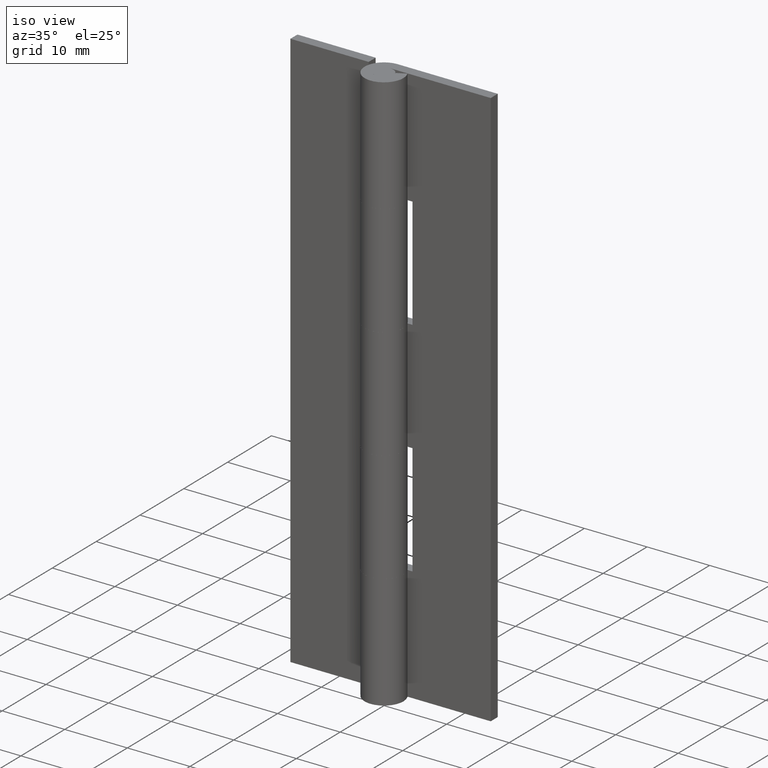
[diagram: clean part render]
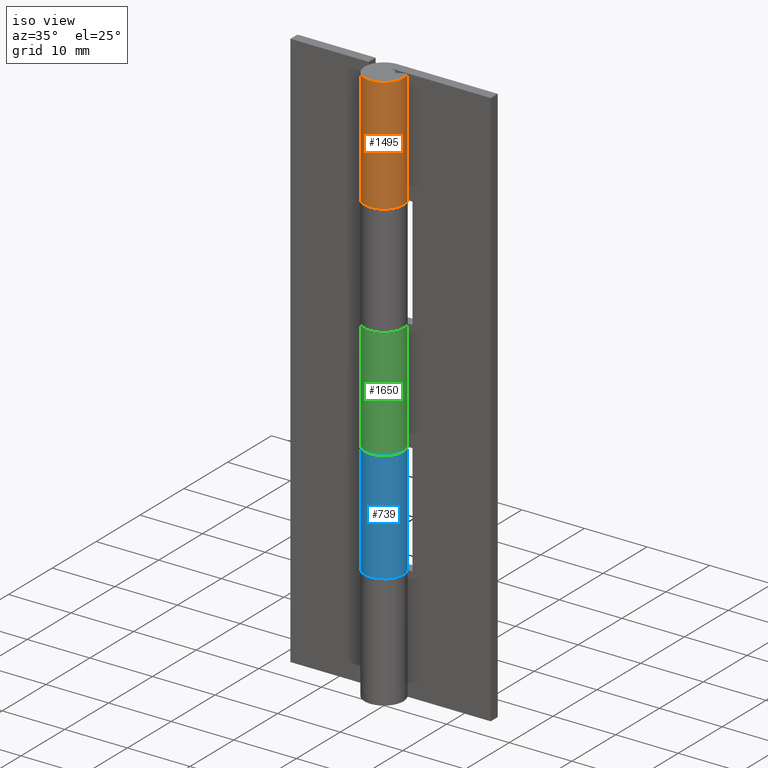
[diagram: same view with three faces highlighted in distinct colors, each labeled with its STEP entity id]
A machine part, iso view with three faces highlighted in distinct colors.
Their STEP definitions:

[orange] entity #1495 — the highlighted face is a freeform B-spline surface patch.
#1073=CARTESIAN_POINT('',(0.0,3.099998000000000,71.699996999999996));
#1074=VERTEX_POINT('',#1073);
#1075=CARTESIAN_POINT('',(0.003521362805220,3.099998000000000,71.699996999999996));
#1076=VERTEX_POINT('',#1075);
#1077=CARTESIAN_POINT('',(0.0,3.099998000000000,71.699996999999996));
#1078=CARTESIAN_POINT('',(0.003521362805220,3.099998000000000,71.699996999999996));
#1079=QUASI_UNIFORM_CURVE('',1,(#1077,#1078),.UNSPECIFIED.,.F.,.U.);
#1080=EDGE_CURVE('',#1074,#1076,#1079,.T.);
#1124=CARTESIAN_POINT('',(2.739981751764050,1.450000000000000,71.699996999999996));
#1125=VERTEX_POINT('',#1124);
#1131=CARTESIAN_POINT('',(0.0,3.099998000000000,71.699996999999996));
#1132=CARTESIAN_POINT('',(-2.356097610603766,3.099996737895512,71.699996999999996));
#1133=CARTESIAN_POINT('',(-2.986848545660751,0.829898189834370,71.699996999999996));
#1134=CARTESIAN_POINT('',(-3.617599480717734,-1.440200358226772,71.699996999999996));
#1135=CARTESIAN_POINT('',(-1.599218559171948,-2.655655344977900,71.699996999999996));
#1136=CARTESIAN_POINT('',(0.419162362373838,-3.871110331729029,71.699996999999996));
#1137=CARTESIAN_POINT('',(2.130594885355308,-2.251790737784724,71.699996999999996));
#1138=CARTESIAN_POINT('',(3.842027408336780,-0.632471143840418,71.699996999999996));
#1139=CARTESIAN_POINT('',(2.739981751764050,1.450000000000000,71.699996999999996));
#1147=(BOUNDED_CURVE()B_SPLINE_CURVE(2,(#1131,#1132,#1133,#1134,#1135,#1136,#1137,#1138,#1139),.UNSPECIFIED.,.F.,.U.)B_SPLINE_CURVE_WITH_KNOTS((3,2,2,2,3),(0.0,0.250000000000000,0.500000000000000,0.750000000000000,1.0),.UNSPECIFIED.)CURVE()GEOMETRIC_REPRESENTATION_ITEM()RATIONAL_B_SPLINE_CURVE((1.0,0.796150117301085,1.0,0.796150117301085,1.0,0.796150117301085,1.0,0.796150117301085,1.0))REPRESENTATION_ITEM(''));
#1148=EDGE_CURVE('',#1074,#1125,#1147,.T.);
#1178=CARTESIAN_POINT('',(2.739981751764050,1.450000000000000,90.0));
#1179=VERTEX_POINT('',#1178);
#1180=CARTESIAN_POINT('',(0.003521362805220,3.099998000000000,90.0));
#1181=VERTEX_POINT('',#1180);
#1182=CARTESIAN_POINT('',(2.739981751764050,1.450000000000002,90.0));
#1183=CARTESIAN_POINT('',(3.842352259281344,-0.633086258124314,90.0));
#1184=CARTESIAN_POINT('',(2.129955333572986,-2.252396562993291,90.0));
#1185=CARTESIAN_POINT('',(0.417558407864627,-3.871706867862268,90.0));
#1186=CARTESIAN_POINT('',(-1.600726611546711,-2.654745621540072,90.0));
#1187=CARTESIAN_POINT('',(-3.619011630958046,-1.437784375217877,90.0));
#1188=CARTESIAN_POINT('',(-2.986140433580759,0.832445380150624,90.0));
#1189=CARTESIAN_POINT('',(-2.353269236203469,3.102675135519129,90.0));
#1190=CARTESIAN_POINT('',(0.003521362805217,3.099997999999999,90.0));
#1198=(BOUNDED_CURVE()B_SPLINE_CURVE(2,(#1182,#1183,#1184,#1185,#1186,#1187,#1188,#1189,#1190),.UNSPECIFIED.,.F.,.U.)B_SPLINE_CURVE_WITH_KNOTS((3,2,2,2,3),(0.0,0.250000000000000,0.500000000000000,0.750000000000000,1.0),.UNSPECIFIED.)CURVE()GEOMETRIC_REPRESENTATION_ITEM()RATIONAL_B_SPLINE_CURVE((1.0,0.796064190964140,1.0,0.796064190964140,1.0,0.796064190964140,1.0,0.796064190964140,1.0))REPRESENTATION_ITEM(''));
#1199=EDGE_CURVE('',#1179,#1181,#1198,.T.);
#1451=CARTESIAN_POINT('',(0.003521362805220,3.099998000000000,71.699996999999996));
#1452=CARTESIAN_POINT('',(0.003521362805220,3.099998000000000,90.0));
#1453=QUASI_UNIFORM_CURVE('',1,(#1451,#1452),.UNSPECIFIED.,.F.,.U.);
#1454=EDGE_CURVE('',#1076,#1181,#1453,.T.);
#1462=CARTESIAN_POINT('',(2.701086253403874,1.521227481895005,71.242496924999983));
#1463=CARTESIAN_POINT('',(2.701086253403874,1.521227481895005,90.468937576875021));
#1464=CARTESIAN_POINT('',(4.535584156375530,-1.736100647256542,71.242496924999983));
#1465=CARTESIAN_POINT('',(4.535584156375530,-1.736100647256542,90.468937576875035));
#1466=CARTESIAN_POINT('',(0.994984302584502,-2.935984713449718,71.242496924999983));
#1467=CARTESIAN_POINT('',(0.994984302584502,-2.935984713449718,90.468937576875021));
#1468=CARTESIAN_POINT('',(-2.545615551206526,-4.135868779642896,71.242496924999983));
#1469=CARTESIAN_POINT('',(-2.545615551206526,-4.135868779642896,90.468937576875035));
#1470=CARTESIAN_POINT('',(-3.069419339239028,-0.434355752702138,71.242496924999983));
#1471=CARTESIAN_POINT('',(-3.069419339239028,-0.434355752702138,90.468937576875021));
#1472=CARTESIAN_POINT('',(-3.593223127271530,3.267157274238619,71.242496924999983));
#1473=CARTESIAN_POINT('',(-3.593223127271530,3.267157274238619,90.468937576875035));
#1474=CARTESIAN_POINT('',(0.141283570192311,3.096778802690581,71.242496924999983));
#1475=CARTESIAN_POINT('',(0.141283570192311,3.096778802690581,90.468937576875021));
#1483=(BOUNDED_SURFACE()B_SPLINE_SURFACE(1,2,((#1462,#1464,#1466,#1468,#1470,#1472,#1474),(#1463,#1465,#1467,#1469,#1471,#1473,#1475)),.UNSPECIFIED.,.F.,.F.,.U.)B_SPLINE_SURFACE_WITH_KNOTS((2,2),(3,2,2,3),(0.0,19.226440651875041),(0.0,5.826188062565751,11.652376125131500,17.478564187697248),.UNSPECIFIED.)GEOMETRIC_REPRESENTATION_ITEM()RATIONAL_B_SPLINE_SURFACE(((1.0,0.638320090924328,1.0,0.638320090924328,1.0,0.638320090924328,1.0),(1.0,0.638320090924328,1.0,0.638320090924328,1.0,0.638320090924328,1.0)))REPRESENTATION_ITEM('')SURFACE());
#1484=ORIENTED_EDGE('',*,*,#1080,.F.);
#1485=ORIENTED_EDGE('',*,*,#1148,.T.);
#1486=CARTESIAN_POINT('',(2.739981751764050,1.450000000000000,71.699996999999996));
#1487=CARTESIAN_POINT('',(2.739981751764050,1.450000000000000,90.0));
#1488=QUASI_UNIFORM_CURVE('',1,(#1486,#1487),.UNSPECIFIED.,.F.,.U.);
#1489=EDGE_CURVE('',#1125,#1179,#1488,.T.);
#1490=ORIENTED_EDGE('',*,*,#1489,.T.);
#1491=ORIENTED_EDGE('',*,*,#1199,.T.);
#1492=ORIENTED_EDGE('',*,*,#1454,.F.);
#1493=EDGE_LOOP('',(#1484,#1485,#1490,#1491,#1492));
#1494=FACE_OUTER_BOUND('',#1493,.T.);
#1495=ADVANCED_FACE('',(#1494),#1483,.T.);

[blue] entity #739 — the highlighted face is a freeform B-spline surface patch.
#49=CARTESIAN_POINT('',(-2.739981751764050,1.450000000000000,36.100005999999958));
#50=VERTEX_POINT('',#49);
#51=CARTESIAN_POINT('',(0.0,3.099998000000000,36.100006000000000));
#52=VERTEX_POINT('',#51);
#53=CARTESIAN_POINT('',(-2.739981751764050,1.450000000000000,36.100005999999958));
#54=CARTESIAN_POINT('',(-3.842027408336781,-0.632471143840419,36.100005999999937));
#55=CARTESIAN_POINT('',(-2.130594885355311,-2.251790737784725,36.100005999999937));
#56=CARTESIAN_POINT('',(-0.419162362373840,-3.871110331729031,36.100005999999951));
#57=CARTESIAN_POINT('',(1.599218559171949,-2.655655344977900,36.100005999999979));
#58=CARTESIAN_POINT('',(3.617599480717733,-1.440200358226772,36.100006000000022));
#59=CARTESIAN_POINT('',(2.986848545660752,0.829898189834368,36.100006000000022));
#60=CARTESIAN_POINT('',(2.356097610603769,3.099996737895513,36.100006000000036));
#61=CARTESIAN_POINT('',(0.0,3.099998000000000,36.100006000000000));
#69=(BOUNDED_CURVE()B_SPLINE_CURVE(2,(#53,#54,#55,#56,#57,#58,#59,#60,#61),.UNSPECIFIED.,.F.,.U.)B_SPLINE_CURVE_WITH_KNOTS((3,2,2,2,3),(0.0,0.250000000000000,0.500000000000000,0.750000000000000,1.0),.UNSPECIFIED.)CURVE()GEOMETRIC_REPRESENTATION_ITEM()RATIONAL_B_SPLINE_CURVE((1.0,0.796150117301084,1.0,0.796150117301084,1.0,0.796150117301084,1.0,0.796150117301084,1.0))REPRESENTATION_ITEM(''));
#70=EDGE_CURVE('',#50,#52,#69,.T.);
#72=CARTESIAN_POINT('',(-0.003521362805221,3.099998000000000,36.100006000000000));
#73=VERTEX_POINT('',#72);
#74=CARTESIAN_POINT('',(0.0,3.099998000000000,36.100006000000000));
#75=CARTESIAN_POINT('',(-0.003521362805221,3.099998000000000,36.100006000000000));
#76=QUASI_UNIFORM_CURVE('',1,(#74,#75),.UNSPECIFIED.,.F.,.U.);
#77=EDGE_CURVE('',#52,#73,#76,.T.);
#239=CARTESIAN_POINT('',(-2.739981751764050,1.450000000000000,18.300003000000000));
#240=VERTEX_POINT('',#239);
#241=CARTESIAN_POINT('',(0.0,3.099998000000050,18.300003000000000));
#242=VERTEX_POINT('',#241);
#243=CARTESIAN_POINT('',(-2.739981751764050,1.450000000000000,18.300003000000000));
#244=CARTESIAN_POINT('',(-3.842027408336781,-0.632471143840450,18.300003000000004));
#245=CARTESIAN_POINT('',(-2.130594885355311,-2.251790737784747,18.300003000000000));
#246=CARTESIAN_POINT('',(-0.419162362373840,-3.871110331729044,18.300003000000004));
#247=CARTESIAN_POINT('',(1.599218559171949,-2.655655344977876,18.300003000000000));
#248=CARTESIAN_POINT('',(3.617599480717733,-1.440200358226710,18.300003000000004));
#249=CARTESIAN_POINT('',(2.986848545660752,0.829898189834439,18.300003000000000));
#250=CARTESIAN_POINT('',(2.356097610603769,3.099996737895594,18.300003000000004));
#251=CARTESIAN_POINT('',(0.0,3.099998000000050,18.300003000000000));
#259=(BOUNDED_CURVE()B_SPLINE_CURVE(2,(#243,#244,#245,#246,#247,#248,#249,#250,#251),.UNSPECIFIED.,.F.,.U.)B_SPLINE_CURVE_WITH_KNOTS((3,2,2,2,3),(0.0,0.250000000000000,0.500000000000000,0.750000000000000,1.0),.UNSPECIFIED.)CURVE()GEOMETRIC_REPRESENTATION_ITEM()RATIONAL_B_SPLINE_CURVE((1.0,0.796150117301084,1.0,0.796150117301084,1.0,0.796150117301084,1.0,0.796150117301084,1.0))REPRESENTATION_ITEM(''));
#260=EDGE_CURVE('',#240,#242,#259,.T.);
#304=CARTESIAN_POINT('',(-0.003521362805221,3.099998000000050,18.300003000000000));
#305=VERTEX_POINT('',#304);
#311=CARTESIAN_POINT('',(-0.003521362805221,3.099998000000050,18.300003000000000));
#312=CARTESIAN_POINT('',(0.0,3.099998000000050,18.300003000000000));
#313=QUASI_UNIFORM_CURVE('',1,(#311,#312),.UNSPECIFIED.,.F.,.U.);
#314=EDGE_CURVE('',#305,#242,#313,.T.);
#610=CARTESIAN_POINT('',(-0.003521362805221,3.099998000000000,36.100006000000000));
#611=CARTESIAN_POINT('',(-0.003521362805221,3.099998000000050,18.300003000000000));
#612=QUASI_UNIFORM_CURVE('',1,(#610,#611),.UNSPECIFIED.,.F.,.U.);
#613=EDGE_CURVE('',#73,#305,#612,.T.);
#665=CARTESIAN_POINT('',(-2.739981751764050,1.450000000000000,36.100005999999958));
#666=CARTESIAN_POINT('',(-2.739981751764050,1.450000000000000,18.300003000000000));
#667=QUASI_UNIFORM_CURVE('',1,(#665,#666),.UNSPECIFIED.,.F.,.U.);
#668=EDGE_CURVE('',#50,#240,#667,.T.);
#709=CARTESIAN_POINT('',(-2.701086253403874,1.521227481895005,36.545006075000032));
#710=CARTESIAN_POINT('',(-2.701086253403874,1.521227481895005,17.843877923125000));
#711=CARTESIAN_POINT('',(-4.535584156375530,-1.736100647256542,36.545006075000032));
#712=CARTESIAN_POINT('',(-4.535584156375530,-1.736100647256542,17.843877923124992));
#713=CARTESIAN_POINT('',(-0.994984302584502,-2.935984713449718,36.545006075000032));
#714=CARTESIAN_POINT('',(-0.994984302584502,-2.935984713449718,17.843877923125000));
#715=CARTESIAN_POINT('',(2.545615551206526,-4.135868779642896,36.545006075000032));
#716=CARTESIAN_POINT('',(2.545615551206526,-4.135868779642896,17.843877923124992));
#717=CARTESIAN_POINT('',(3.069419339239028,-0.434355752702138,36.545006075000032));
#718=CARTESIAN_POINT('',(3.069419339239028,-0.434355752702138,17.843877923125000));
#719=CARTESIAN_POINT('',(3.593223127271530,3.267157274238619,36.545006075000032));
#720=CARTESIAN_POINT('',(3.593223127271530,3.267157274238619,17.843877923124992));
#721=CARTESIAN_POINT('',(-0.141283570192311,3.096778802690581,36.545006075000032));
#722=CARTESIAN_POINT('',(-0.141283570192311,3.096778802690581,17.843877923125000));
#730=(BOUNDED_SURFACE()B_SPLINE_SURFACE(1,2,((#709,#711,#713,#715,#717,#719,#721),(#710,#712,#714,#716,#718,#720,#722)),.UNSPECIFIED.,.F.,.F.,.U.)B_SPLINE_SURFACE_WITH_KNOTS((2,2),(3,2,2,3),(0.0,18.701128151875029),(0.0,5.826188062565751,11.652376125131500,17.478564187697248),.UNSPECIFIED.)GEOMETRIC_REPRESENTATION_ITEM()RATIONAL_B_SPLINE_SURFACE(((1.0,0.638320090924328,1.0,0.638320090924328,1.0,0.638320090924328,1.0),(1.0,0.638320090924328,1.0,0.638320090924328,1.0,0.638320090924328,1.0)))REPRESENTATION_ITEM('')SURFACE());
#731=ORIENTED_EDGE('',*,*,#70,.F.);
#732=ORIENTED_EDGE('',*,*,#668,.T.);
#733=ORIENTED_EDGE('',*,*,#260,.T.);
#734=ORIENTED_EDGE('',*,*,#314,.F.);
#735=ORIENTED_EDGE('',*,*,#613,.F.);
#736=ORIENTED_EDGE('',*,*,#77,.F.);
#737=EDGE_LOOP('',(#731,#732,#733,#734,#735,#736));
#738=FACE_OUTER_BOUND('',#737,.T.);
#739=ADVANCED_FACE('',(#738),#730,.T.);

[green] entity #1650 — the highlighted face is a freeform B-spline surface patch.
#798=CARTESIAN_POINT('',(0.003521362805220,3.099998000000000,36.100006000000093));
#799=VERTEX_POINT('',#798);
#800=CARTESIAN_POINT('',(0.0,3.099998000000000,36.100006000000093));
#801=VERTEX_POINT('',#800);
#802=CARTESIAN_POINT('',(0.003521362805220,3.099998000000000,36.100006000000093));
#803=CARTESIAN_POINT('',(0.0,3.099998000000000,36.100006000000093));
#804=QUASI_UNIFORM_CURVE('',1,(#802,#803),.UNSPECIFIED.,.F.,.U.);
#805=EDGE_CURVE('',#799,#801,#804,.T.);
#849=CARTESIAN_POINT('',(2.739981751764050,1.450000000000000,36.100006000000093));
#850=VERTEX_POINT('',#849);
#856=CARTESIAN_POINT('',(0.0,3.099998000000000,36.100006000000093));
#857=CARTESIAN_POINT('',(-2.356097610603766,3.099996737895512,36.100006000000093));
#858=CARTESIAN_POINT('',(-2.986848545660751,0.829898189834370,36.100006000000093));
#859=CARTESIAN_POINT('',(-3.617599480717734,-1.440200358226772,36.100006000000093));
#860=CARTESIAN_POINT('',(-1.599218559171948,-2.655655344977900,36.100006000000093));
#861=CARTESIAN_POINT('',(0.419162362373838,-3.871110331729029,36.100006000000093));
#862=CARTESIAN_POINT('',(2.130594885355308,-2.251790737784724,36.100006000000093));
#863=CARTESIAN_POINT('',(3.842027408336780,-0.632471143840418,36.100006000000093));
#864=CARTESIAN_POINT('',(2.739981751764050,1.450000000000000,36.100006000000093));
#872=(BOUNDED_CURVE()B_SPLINE_CURVE(2,(#856,#857,#858,#859,#860,#861,#862,#863,#864),.UNSPECIFIED.,.F.,.U.)B_SPLINE_CURVE_WITH_KNOTS((3,2,2,2,3),(0.0,0.250000000000000,0.500000000000000,0.750000000000000,1.0),.UNSPECIFIED.)CURVE()GEOMETRIC_REPRESENTATION_ITEM()RATIONAL_B_SPLINE_CURVE((1.0,0.796150117301085,1.0,0.796150117301085,1.0,0.796150117301085,1.0,0.796150117301085,1.0))REPRESENTATION_ITEM(''));
#873=EDGE_CURVE('',#801,#850,#872,.T.);
#988=CARTESIAN_POINT('',(2.739981751764050,1.450000000000000,53.899993999999893));
#989=VERTEX_POINT('',#988);
#990=CARTESIAN_POINT('',(0.0,3.099998000000000,53.899993999999893));
#991=VERTEX_POINT('',#990);
#992=CARTESIAN_POINT('',(2.739981751764050,1.450000000000000,53.899993999999893));
#993=CARTESIAN_POINT('',(3.842027408336779,-0.632471143840417,53.899993999999893));
#994=CARTESIAN_POINT('',(2.130594885355309,-2.251790737784723,53.899993999999893));
#995=CARTESIAN_POINT('',(0.419162362373838,-3.871110331729029,53.899993999999893));
#996=CARTESIAN_POINT('',(-1.599218559171949,-2.655655344977900,53.899993999999893));
#997=CARTESIAN_POINT('',(-3.617599480717734,-1.440200358226770,53.899993999999893));
#998=CARTESIAN_POINT('',(-2.986848545660751,0.829898189834370,53.899993999999893));
#999=CARTESIAN_POINT('',(-2.356097610603767,3.099996737895512,53.899993999999893));
#1000=CARTESIAN_POINT('',(0.0,3.099998000000000,53.899993999999893));
#1008=(BOUNDED_CURVE()B_SPLINE_CURVE(2,(#992,#993,#994,#995,#996,#997,#998,#999,#1000),.UNSPECIFIED.,.F.,.U.)B_SPLINE_CURVE_WITH_KNOTS((3,2,2,2,3),(0.0,0.250000000000000,0.500000000000000,0.750000000000000,1.0),.UNSPECIFIED.)CURVE()GEOMETRIC_REPRESENTATION_ITEM()RATIONAL_B_SPLINE_CURVE((1.0,0.796150117301085,1.0,0.796150117301085,1.0,0.796150117301085,1.0,0.796150117301085,1.0))REPRESENTATION_ITEM(''));
#1009=EDGE_CURVE('',#989,#991,#1008,.T.);
#1053=CARTESIAN_POINT('',(0.003521362805220,3.099998000000000,53.899993999999893));
#1054=VERTEX_POINT('',#1053);
#1060=CARTESIAN_POINT('',(0.003521362805220,3.099998000000000,53.899993999999893));
#1061=CARTESIAN_POINT('',(0.0,3.099998000000000,53.899993999999893));
#1062=QUASI_UNIFORM_CURVE('',1,(#1060,#1061),.UNSPECIFIED.,.F.,.U.);
#1063=EDGE_CURVE('',#1054,#991,#1062,.T.);
#1334=CARTESIAN_POINT('',(2.739981751764050,1.450000000000000,36.100006000000093));
#1335=CARTESIAN_POINT('',(2.739981751764050,1.450000000000000,53.899993999999893));
#1336=QUASI_UNIFORM_CURVE('',1,(#1334,#1335),.UNSPECIFIED.,.F.,.U.);
#1337=EDGE_CURVE('',#850,#989,#1336,.T.);
#1443=CARTESIAN_POINT('',(0.003521362805220,3.099998000000000,36.100006000000093));
#1444=CARTESIAN_POINT('',(0.003521362805220,3.099998000000000,53.899993999999893));
#1445=QUASI_UNIFORM_CURVE('',1,(#1443,#1444),.UNSPECIFIED.,.F.,.U.);
#1446=EDGE_CURVE('',#799,#1054,#1445,.T.);
#1620=CARTESIAN_POINT('',(2.699834918711257,1.523447213298633,35.655006300000089));
#1621=CARTESIAN_POINT('',(2.699834918711257,1.523447213298633,54.356118692499898));
#1622=CARTESIAN_POINT('',(4.558915972059315,-1.771193979864720,35.655006300000082));
#1623=CARTESIAN_POINT('',(4.558915972059315,-1.771193979864720,54.356118692499898));
#1624=CARTESIAN_POINT('',(0.963178343373894,-2.946572157415377,35.655006300000089));
#1625=CARTESIAN_POINT('',(0.963178343373894,-2.946572157415377,54.356118692499898));
#1626=CARTESIAN_POINT('',(-2.632559285311527,-4.121950334966037,35.655006300000082));
#1627=CARTESIAN_POINT('',(-2.632559285311527,-4.121950334966037,54.356118692499898));
#1628=CARTESIAN_POINT('',(-3.078396003541829,-0.365346473060419,35.655006300000089));
#1629=CARTESIAN_POINT('',(-3.078396003541829,-0.365346473060419,54.356118692499898));
#1630=CARTESIAN_POINT('',(-3.524232721772132,3.391257388845198,35.655006300000082));
#1631=CARTESIAN_POINT('',(-3.524232721772132,3.391257388845198,54.356118692499898));
#1632=CARTESIAN_POINT('',(0.246733547457015,3.090165457796600,35.655006300000089));
#1633=CARTESIAN_POINT('',(0.246733547457015,3.090165457796600,54.356118692499898));
#1641=(BOUNDED_SURFACE()B_SPLINE_SURFACE(1,2,((#1620,#1622,#1624,#1626,#1628,#1630,#1632),(#1621,#1623,#1625,#1627,#1629,#1631,#1633)),.UNSPECIFIED.,.F.,.F.,.U.)B_SPLINE_SURFACE_WITH_KNOTS((2,2),(3,2,2,3),(0.0,18.701112392499809),(0.0,5.870281529289076,11.740563058578150,17.610844587867231),.UNSPECIFIED.)GEOMETRIC_REPRESENTATION_ITEM()RATIONAL_B_SPLINE_SURFACE(((1.0,0.633830967398710,1.0,0.633830967398710,1.0,0.633830967398710,1.0),(1.0,0.633830967398710,1.0,0.633830967398710,1.0,0.633830967398710,1.0)))REPRESENTATION_ITEM('')SURFACE());
#1642=ORIENTED_EDGE('',*,*,#805,.T.);
#1643=ORIENTED_EDGE('',*,*,#873,.T.);
#1644=ORIENTED_EDGE('',*,*,#1337,.T.);
#1645=ORIENTED_EDGE('',*,*,#1009,.T.);
#1646=ORIENTED_EDGE('',*,*,#1063,.F.);
#1647=ORIENTED_EDGE('',*,*,#1446,.F.);
#1648=EDGE_LOOP('',(#1642,#1643,#1644,#1645,#1646,#1647));
#1649=FACE_OUTER_BOUND('',#1648,.T.);
#1650=ADVANCED_FACE('',(#1649),#1641,.T.);